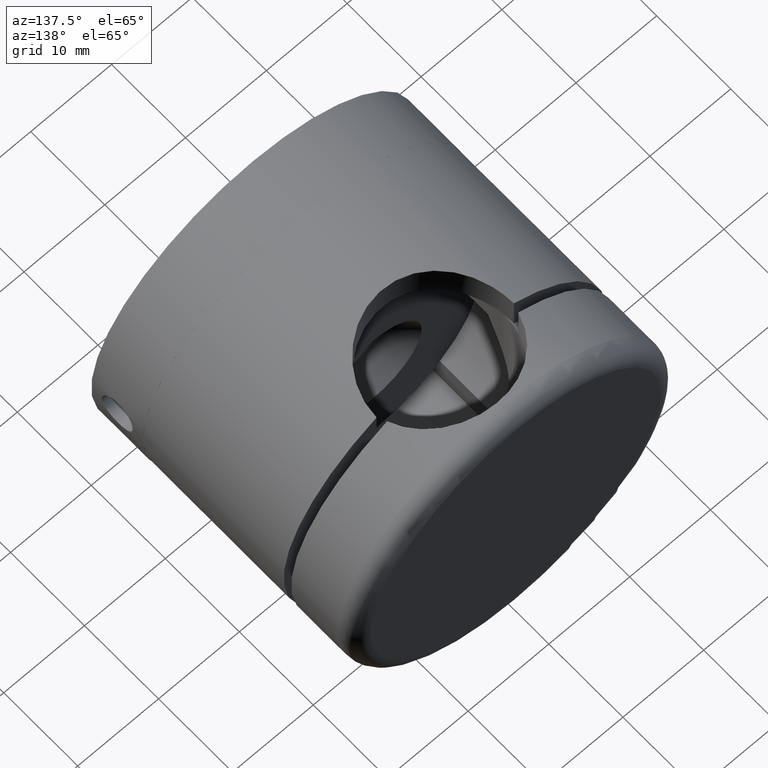
[diagram: clean part render]
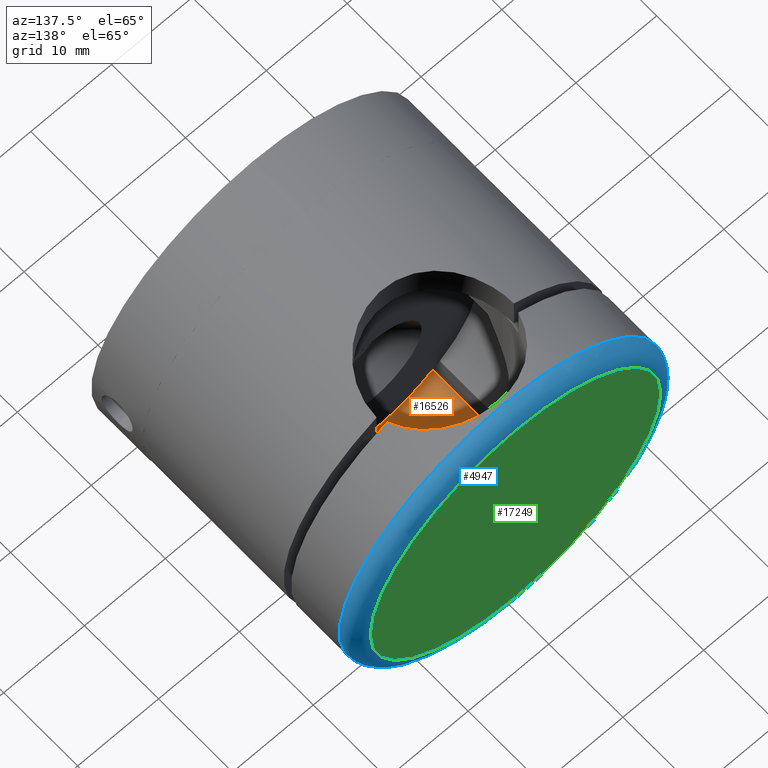
[diagram: same view with three faces highlighted in distinct colors, each labeled with its STEP entity id]
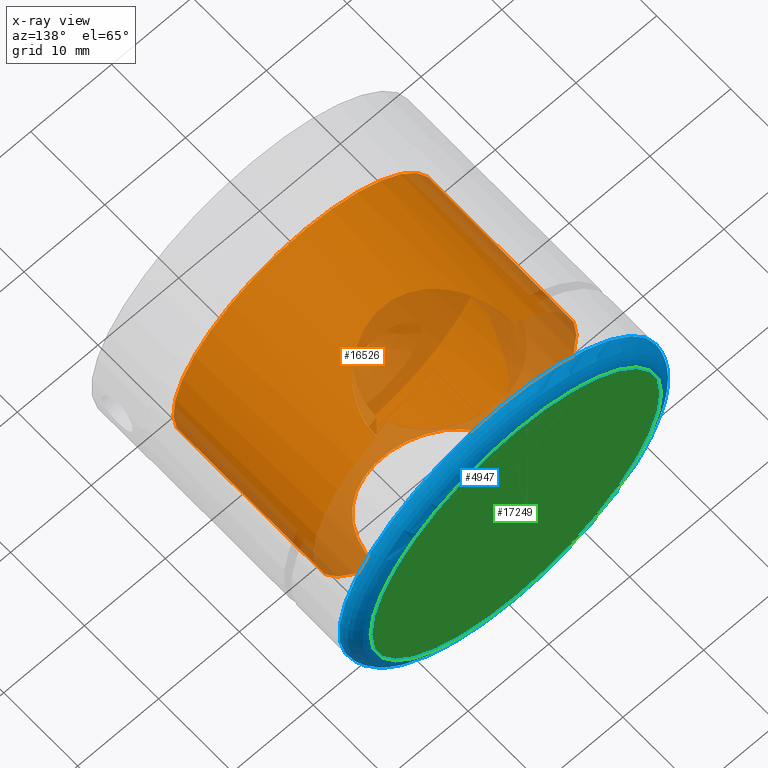
[diagram: x-ray of the same camera — body ghosted, the three highlighted faces saturated]
A machine part, auxiliary view with three faces highlighted in distinct colors.
The next image is the same camera in x-ray (body ghosted, the three faces saturated) — at least one of them is partly hidden behind the body in this view.
Their STEP definitions:

[orange] entity #16526 — the highlighted cylindrical surface (bore or boss wall) has radius 16.25 mm, axis along (0, 1, -0).
#52 = CARTESIAN_POINT ( 'NONE',  ( -7.363247620549483200, 4.282063424749966700, 14.49004335591300400 ) ) ;
#110 = CARTESIAN_POINT ( 'NONE',  ( 8.037232161873607300, 2.780470239866471300, 14.12354426583494900 ) ) ;
#119 = CARTESIAN_POINT ( 'NONE',  ( -3.028906066633567200, 7.946945183676009000, -15.96739117098686800 ) ) ;
#135 = EDGE_CURVE ( 'NONE', #8917, #15975, #12271, .T. ) ;
#176 = CARTESIAN_POINT ( 'NONE',  ( -5.195497771166607500, 6.732926401432910000, -15.39869604431503300 ) ) ;
#220 = VERTEX_POINT ( 'NONE', #11013 ) ;
#229 = CARTESIAN_POINT ( 'NONE',  ( -1.402120425055310800, 8.388269895720849700, -16.19176679194334100 ) ) ;
#272 = DIRECTION ( 'NONE',  ( 0.0000000000000000000, 1.000000000000000000, 0.0000000000000000000 ) ) ;
#481 = CYLINDRICAL_SURFACE ( 'NONE', #16524, 16.25000000000000000 ) ;
#1132 = CARTESIAN_POINT ( 'NONE',  ( 3.809983690300571300, 7.618446356659919900, -15.80563853915804100 ) ) ;
#1194 = CARTESIAN_POINT ( 'NONE',  ( 5.824376384262346400, 6.196819558004585300, -15.17174651621064600 ) ) ;
#1247 = CARTESIAN_POINT ( 'NONE',  ( 0.0000000000000000000, 19.00000000000000000, 16.25000000000000000 ) ) ;
#1249 = CARTESIAN_POINT ( 'NONE',  ( 6.208522671623909700, 5.811899787156776600, -15.01863838214485700 ) ) ;
#1293 = CARTESIAN_POINT ( 'NONE',  ( -3.044419932239369200, 7.940918235848546800, 15.96439565447294300 ) ) ;
#1300 = CARTESIAN_POINT ( 'NONE',  ( 6.902502798568850300, 4.968030373218366200, -14.71213863149005100 ) ) ;
#1351 = CARTESIAN_POINT ( 'NONE',  ( 7.361725829991794300, 4.284890509427121700, 14.49084663178017100 ) ) ;
#1392 = B_SPLINE_CURVE_WITH_KNOTS ( 'NONE', 3,
 ( #12020, #17214, #14484, #17159, #9196, #12073, #6589, #1300, #7964, #10513, #1249, #1194, #2431, #5182, #11849, #10572, #1132, #11906, #5294, #14598, #10631, #10690, #11962, #3914, #5242, #14716, #229, #14823, #5403, #13479, #119, #6877, #13651, #1580, #176, #16264, #4192, #2945, #1469, #10906, #10793, #4240, #12298, #1524, #5570, #14996, #2888, #12133 ),
 .UNSPECIFIED., .F., .F.,
 ( 4, 2, 2, 2, 2, 2, 2, 2, 2, 2, 2, 2, 2, 2, 2, 2, 2, 2, 2, 2, 2, 2, 2, 4 ),
 ( 0.0000000000000000000, 0.001691801818246960600, 0.003383603636493921200, 0.005075405454740883700, 0.005921306363864364300, 0.006767207272987845800, 0.007613108182111327300, 0.008459009091234809600, 0.01015081090948177100, 0.01099671181860524700, 0.01184261272772872700, 0.01353441454597568500, 0.01438031545509916400, 0.01522621636422264600, 0.01607211727334612400, 0.01691801818246960500, 0.01860982000071656500, 0.01945572090984003900, 0.02030162181896351700, 0.02199342363721047000, 0.02368522545545741900, 0.02453112636458090100, 0.02537702727370437500, 0.02706882909195132800 ),
 .UNSPECIFIED. ) ;
#1402 = CARTESIAN_POINT ( 'NONE',  ( -1.140538446973511600, 8.441914083903276000, 16.21940800330598300 ) ) ;
#1469 = CARTESIAN_POINT ( 'NONE',  ( -6.745047415615163200, 5.201887083998208500, -14.78796736046945200 ) ) ;
#1524 = CARTESIAN_POINT ( 'NONE',  ( -8.202525390774990700, 2.246484540882815100, -14.02819235200953000 ) ) ;
#1580 = CARTESIAN_POINT ( 'NONE',  ( -4.973135697684223400, 6.898821690035361200, -15.47215179295967700 ) ) ;
#1753 = CARTESIAN_POINT ( 'NONE',  ( 8.273194718250765700, 1.970927600636225500, 13.98646029484137500 ) ) ;
#1828 = CARTESIAN_POINT ( 'NONE',  ( -0.5811602726622778800, 8.499076714267172200, 16.24951705099035900 ) ) ;
#2115 = VERTEX_POINT ( 'NONE', #8675 ) ;
#2431 = CARTESIAN_POINT ( 'NONE',  ( 5.622895243726803800, 6.380292401261695700, -15.24781188273059000 ) ) ;
#2658 = CARTESIAN_POINT ( 'NONE',  ( 6.745047274279450300, 5.201887267279287700, 14.78796742522374100 ) ) ;
#2680 = CARTESIAN_POINT ( 'NONE',  ( 0.0000000000000000000, 19.00000000000000000, 0.0000000000000000000 ) ) ;
#2710 = CARTESIAN_POINT ( 'NONE',  ( -6.737869404444845500, 5.188985629009343900, 14.78849291981611600 ) ) ;
#2888 = CARTESIAN_POINT ( 'NONE',  ( -8.500000000000019500, 0.5735814548538439300, -13.84963898446453400 ) ) ;
#2945 = CARTESIAN_POINT ( 'NONE',  ( -6.398414073180268800, 5.621971925363692600, -14.94303349046653500 ) ) ;
#3318 = CARTESIAN_POINT ( 'NONE',  ( -8.500000000000019500, 0.0000000000000000000, 13.84963898446453000 ) ) ;
#3746 = ORIENTED_EDGE ( 'NONE', *, *, #4349, .F. ) ;
#3791 = CIRCLE ( 'NONE', #14278, 16.25000000000000000 ) ;
#3914 = CARTESIAN_POINT ( 'NONE',  ( -0.2700835903890610500, 8.500445160017417100, -16.25023285271093700 ) ) ;
#3962 = CARTESIAN_POINT ( 'NONE',  ( 1.123044246282169000, 8.430272554987556800, 16.21361837249518300 ) ) ;
#4069 = CARTESIAN_POINT ( 'NONE',  ( 7.622130831201384500, 3.802159861847044500, 14.35357052392691400 ) ) ;
#4185 = CARTESIAN_POINT ( 'NONE',  ( -8.500000000000017800, 0.5731209837496423800, 13.84963898446453500 ) ) ;
#4192 = CARTESIAN_POINT ( 'NONE',  ( -5.821409128587442100, 6.199618012665074400, -15.17288894360160600 ) ) ;
#4240 = CARTESIAN_POINT ( 'NONE',  ( -7.942311071807293600, 3.040644560720310100, -14.17734235091940100 ) ) ;
#4349 = EDGE_CURVE ( 'NONE', #2115, #220, #1392, .T. ) ;
#4773 = EDGE_CURVE ( 'NONE', #15975, #2115, #13831, .T. ) ;
#4836 = ORIENTED_EDGE ( 'NONE', *, *, #135, .F. ) ;
#5182 = CARTESIAN_POINT ( 'NONE',  ( 5.200290041349737700, 6.729195013771111200, -15.39706795526032900 ) ) ;
#5242 = CARTESIAN_POINT ( 'NONE',  ( -0.5575896931798539600, 8.486449049194593600, -16.24289822789597800 ) ) ;
#5286 = CARTESIAN_POINT ( 'NONE',  ( 2.225298934138365300, 8.208347937911199200, 16.09920561088535600 ) ) ;
#5294 = CARTESIAN_POINT ( 'NONE',  ( 2.782300072720352200, 8.036692582421428800, -16.01236239929419700 ) ) ;
#5393 = CARTESIAN_POINT ( 'NONE',  ( -5.824376552488693900, 6.196819399890648200, 15.17174645156503100 ) ) ;
#5403 = CARTESIAN_POINT ( 'NONE',  ( -2.225299164092963400, 8.208347875549172600, -16.09920557906083300 ) ) ;
#5570 = CARTESIAN_POINT ( 'NONE',  ( -8.273194772994170200, 1.970927370983964800, -13.98646026241915900 ) ) ;
#5580 = CIRCLE ( 'NONE', #7402, 16.25000000000000000 ) ;
#5622 = EDGE_CURVE ( 'NONE', #220, #8917, #5580, .T. ) ;
#6589 = CARTESIAN_POINT ( 'NONE',  ( 7.363247503396454600, 4.282063626058000900, -14.49004341572021200 ) ) ;
#6636 = CARTESIAN_POINT ( 'NONE',  ( 4.287746782987045300, 7.359925613768137300, 15.68138918018726900 ) ) ;
#6692 = CARTESIAN_POINT ( 'NONE',  ( 0.5575894543927689700, 8.486449064881840700, 16.24289823610216700 ) ) ;
#6741 = CARTESIAN_POINT ( 'NONE',  ( 7.942310987657078800, 3.040644780484841500, 14.17734239812473600 ) ) ;
#6808 = CARTESIAN_POINT ( 'NONE',  ( -4.292819007088092500, 7.356973236554203800, 15.67999772823250400 ) ) ;
#6877 = CARTESIAN_POINT ( 'NONE',  ( -3.802623793064996000, 7.622525246909893900, -15.80759195322337800 ) ) ;
#7402 = AXIS2_PLACEMENT_3D ( 'NONE', #16361, #272, #9702 ) ;
#7964 = CARTESIAN_POINT ( 'NONE',  ( 6.737869263466155400, 5.188985812067407700, -14.78849298411749100 ) ) ;
#8011 = CARTESIAN_POINT ( 'NONE',  ( -8.500000000000019500, 0.0000000000000000000, 13.84963898446453000 ) ) ;
#8129 = CARTESIAN_POINT ( 'NONE',  ( 8.500000000000012400, 2.400058654795349200E-007, 13.84963898446453500 ) ) ;
#8192 = CARTESIAN_POINT ( 'NONE',  ( -2.243177577798439100, 8.203522152921928900, 16.09674183350508500 ) ) ;
#8647 = EDGE_CURVE ( 'NONE', #12052, #12052, #3791, .T. ) ;
#8675 = CARTESIAN_POINT ( 'NONE',  ( 8.500000000000016000, 0.0000000000000000000, -13.84963898446453200 ) ) ;
#8917 = VERTEX_POINT ( 'NONE', #3318 ) ;
#8946 = CARTESIAN_POINT ( 'NONE',  ( 0.0000000000000000000, 19.00000000000000000, 0.0000000000000000000 ) ) ;
#8989 = EDGE_LOOP ( 'NONE', ( #4836, #15680, #3746, #13306 ) ) ;
#9196 = CARTESIAN_POINT ( 'NONE',  ( 8.052693322232306300, 2.776913077881560300, -14.11653347731485800 ) ) ;
#9303 = CARTESIAN_POINT ( 'NONE',  ( -2.782300295503275400, 8.036692505294755800, 16.01236236055419900 ) ) ;
#9365 = CARTESIAN_POINT ( 'NONE',  ( -8.220499268797757600, 2.233354074249762200, 14.01793960798715400 ) ) ;
#9421 = CARTESIAN_POINT ( 'NONE',  ( 3.028905845787061700, 7.946945267864135700, 15.96739121292461900 ) ) ;
#9478 = CARTESIAN_POINT ( 'NONE',  ( 0.2700833509574933600, 8.500445167631847100, 16.25023285669385200 ) ) ;
#9534 = CARTESIAN_POINT ( 'NONE',  ( 8.202525328433028000, 2.246484768489038300, 14.02819238851782300 ) ) ;
#9702 = DIRECTION ( 'NONE',  ( 0.0000000000000000000, 0.0000000000000000000, 1.000000000000000000 ) ) ;
#9975 = FACE_OUTER_BOUND ( 'NONE', #8989, .T. ) ;
#10513 = CARTESIAN_POINT ( 'NONE',  ( 6.391186662903230300, 5.610453547559827400, -14.94159094583913300 ) ) ;
#10572 = CARTESIAN_POINT ( 'NONE',  ( 4.292818805143520300, 7.356973354514498600, -15.67999778377657600 ) ) ;
#10631 = CARTESIAN_POINT ( 'NONE',  ( 1.967838988509392800, 8.273862160623387800, -16.13279240237257300 ) ) ;
#10684 = CARTESIAN_POINT ( 'NONE',  ( -4.977968416968439900, 6.895336684848163400, 15.47059667194233200 ) ) ;
#10690 = CARTESIAN_POINT ( 'NONE',  ( 1.140538209175942000, 8.441914116133961700, -16.21940802015909000 ) ) ;
#10739 = CARTESIAN_POINT ( 'NONE',  ( 5.619482256923998200, 6.383330962864746100, 15.24908050084985500 ) ) ;
#10784 = CARTESIAN_POINT ( 'NONE',  ( 1.953247837865440100, 8.277308524747018800, 16.13456155015392600 ) ) ;
#10793 = CARTESIAN_POINT ( 'NONE',  ( -7.622130935871670200, 3.802159652143755100, -14.35357046809366600 ) ) ;
#10837 = CARTESIAN_POINT ( 'NONE',  ( 5.195497587691990700, 6.732926543015164400, 15.39869610628022700 ) ) ;
#10906 = CARTESIAN_POINT ( 'NONE',  ( -7.361725946244238400, 4.284890309676384000, -14.49084657242636900 ) ) ;
#10908 = FACE_OUTER_BOUND ( 'NONE', #12929, .T. ) ;
#11013 = CARTESIAN_POINT ( 'NONE',  ( -8.499999999999976900, -7.640860524588816100E-007, -13.84963898446455700 ) ) ;
#11133 = CARTESIAN_POINT ( 'NONE',  ( 8.442547272911296500, 1.137814289251726500, 13.88535866464112100 ) ) ;
#11849 = CARTESIAN_POINT ( 'NONE',  ( 4.977968229684965000, 6.895336820087533300, -15.47059673226941500 ) ) ;
#11906 = CARTESIAN_POINT ( 'NONE',  ( 3.044419712261697600, 7.940918320194955800, -15.96439569646502400 ) ) ;
#11962 = CARTESIAN_POINT ( 'NONE',  ( 0.5811600326399415400, 8.499076730651692600, -16.24951705956069500 ) ) ;
#12013 = CARTESIAN_POINT ( 'NONE',  ( -6.902502933459320600, 4.968030185834523500, 14.71213856813573900 ) ) ;
#12020 = CARTESIAN_POINT ( 'NONE',  ( 8.500000000000016000, 0.0000000000000000000, -13.84963898446453200 ) ) ;
#12052 = VERTEX_POINT ( 'NONE', #1247 ) ;
#12063 = CARTESIAN_POINT ( 'NONE',  ( 6.398413920312656000, 5.621972099360209400, 14.94303355618917300 ) ) ;
#12073 = CARTESIAN_POINT ( 'NONE',  ( 7.623959244825647000, 3.798994790371786700, -14.35261762158086000 ) ) ;
#12124 = CARTESIAN_POINT ( 'NONE',  ( -5.200290223917082100, 6.729194872686001400, 15.39706789353994100 ) ) ;
#12133 = CARTESIAN_POINT ( 'NONE',  ( -8.499999999999976900, -7.640860524588816100E-007, -13.84963898446455700 ) ) ;
#12179 = CARTESIAN_POINT ( 'NONE',  ( 4.973135509228340500, 6.898821825910307100, 15.47215185359586100 ) ) ;
#12206 = DIRECTION ( 'NONE',  ( 0.0000000000000000000, 1.000000000000000000, 0.0000000000000000000 ) ) ;
#12271 = B_SPLINE_CURVE_WITH_KNOTS ( 'NONE', 3,
 ( #8011, #4185, #17379, #9365, #13589, #14814, #52, #12013, #2710, #16257, #17325, #5393, #14871, #12124, #10684, #6808, #16086, #1293, #9303, #8192, #16195, #1402, #1828, #9478, #6692, #3962, #13469, #10784, #5286, #14705, #9421, #14755, #6636, #12179, #10837, #10739, #16031, #12063, #2658, #1351, #4069, #6741, #110, #9534, #1753, #11133, #13883, #12464 ),
 .UNSPECIFIED., .F., .F.,
 ( 4, 2, 2, 2, 2, 2, 2, 2, 2, 2, 2, 2, 2, 2, 2, 2, 2, 2, 2, 2, 2, 2, 2, 4 ),
 ( 0.0000000000000000000, 0.001691801818361255400, 0.003383603636722510900, 0.005075405455083767400, 0.005921306364264395000, 0.006767207273445021700, 0.007613108182625649400, 0.008459009091806276100, 0.01015081091016752800, 0.01099671181934815300, 0.01184261272852878000, 0.01353441454689003100, 0.01438031545607065800, 0.01522621636525128100, 0.01607211727443190800, 0.01691801818361253500, 0.01860982000197378800, 0.01945572091115441200, 0.02030162182033503500, 0.02199342363869628500, 0.02368522545705753500, 0.02453112636623815800, 0.02537702727541878500, 0.02706882909378002800 ),
 .UNSPECIFIED. ) ;
#12298 = CARTESIAN_POINT ( 'NONE',  ( -8.037232238921488300, 2.780470017168852300, -14.12354422193410000 ) ) ;
#12464 = CARTESIAN_POINT ( 'NONE',  ( 8.500000000000012400, 2.400058654795349200E-007, 13.84963898446453500 ) ) ;
#12800 = DIRECTION ( 'NONE',  ( 0.0000000000000000000, 1.000000000000000000, 0.0000000000000000000 ) ) ;
#12834 = DIRECTION ( 'NONE',  ( 0.0000000000000000000, 0.0000000000000000000, -1.000000000000000000 ) ) ;
#12922 = DIRECTION ( 'NONE',  ( 0.0000000000000000000, 0.0000000000000000000, 1.000000000000000000 ) ) ;
#12929 = EDGE_LOOP ( 'NONE', ( #16239 ) ) ;
#13306 = ORIENTED_EDGE ( 'NONE', *, *, #4773, .F. ) ;
#13469 = CARTESIAN_POINT ( 'NONE',  ( 1.402120189043193400, 8.388269935180510100, 16.19176681240527700 ) ) ;
#13479 = CARTESIAN_POINT ( 'NONE',  ( -2.762464445342871500, 8.043489379862567300, -16.01577868337323500 ) ) ;
#13589 = CARTESIAN_POINT ( 'NONE',  ( -8.052693399292122600, 2.776912854631172800, 14.11653343310046100 ) ) ;
#13651 = CARTESIAN_POINT ( 'NONE',  ( -4.287746985521142300, 7.359925495688612400, -15.68138912456482700 ) ) ;
#13802 = CARTESIAN_POINT ( 'NONE',  ( 0.0000000000000000000, 0.0000000000000000000, 0.0000000000000000000 ) ) ;
#13831 = CIRCLE ( 'NONE', #13870, 16.25000000000000000 ) ;
#13870 = AXIS2_PLACEMENT_3D ( 'NONE', #13802, #12800, #12922 ) ;
#13883 = CARTESIAN_POINT ( 'NONE',  ( 8.499999983804373800, 0.5735816947827635500, 13.84963899440435100 ) ) ;
#14239 = DIRECTION ( 'NONE',  ( -0.0000000000000000000, -1.000000000000000000, -0.0000000000000000000 ) ) ;
#14278 = AXIS2_PLACEMENT_3D ( 'NONE', #2680, #12206, #14778 ) ;
#14484 = CARTESIAN_POINT ( 'NONE',  ( 8.442659619947717100, 1.134009342875253600, -13.88527052771008400 ) ) ;
#14598 = CARTESIAN_POINT ( 'NONE',  ( 2.243177350429215200, 8.203522215093258300, -16.09674186521953500 ) ) ;
#14705 = CARTESIAN_POINT ( 'NONE',  ( 2.762464221162083800, 8.043489456876773900, 16.01577872208027000 ) ) ;
#14716 = CARTESIAN_POINT ( 'NONE',  ( -1.123044483601358400, 8.430272523374839000, -16.21361835604807700 ) ) ;
#14755 = CARTESIAN_POINT ( 'NONE',  ( 3.802623582357953900, 7.622525352085043300, 15.80759200409083800 ) ) ;
#14778 = DIRECTION ( 'NONE',  ( 0.0000000000000000000, 0.0000000000000000000, 1.000000000000000000 ) ) ;
#14814 = CARTESIAN_POINT ( 'NONE',  ( -7.623959349269640900, 3.798994580925700000, 14.35261756584944900 ) ) ;
#14823 = CARTESIAN_POINT ( 'NONE',  ( -1.953248070195373200, 8.277308469912913600, -16.13456152200346600 ) ) ;
#14871 = CARTESIAN_POINT ( 'NONE',  ( -5.622895416904475100, 6.380292248643931100, 15.24781181880865200 ) ) ;
#14996 = CARTESIAN_POINT ( 'NONE',  ( -8.442547305012478600, 1.137814052028089100, -13.88535864495906900 ) ) ;
#15680 = ORIENTED_EDGE ( 'NONE', *, *, #5622, .F. ) ;
#15975 = VERTEX_POINT ( 'NONE', #8129 ) ;
#16031 = CARTESIAN_POINT ( 'NONE',  ( 5.821408959818793200, 6.199618171141711500, 15.17288900841903200 ) ) ;
#16086 = CARTESIAN_POINT ( 'NONE',  ( -3.809983900521940000, 7.618446251484360100, 15.80563848831322300 ) ) ;
#16195 = CARTESIAN_POINT ( 'NONE',  ( -1.967839219327221600, 8.273862105699803800, 16.13279237418496200 ) ) ;
#16239 = ORIENTED_EDGE ( 'NONE', *, *, #8647, .T. ) ;
#16257 = CARTESIAN_POINT ( 'NONE',  ( -6.391186815282856600, 5.610453373977368800, 14.94159088059100100 ) ) ;
#16264 = CARTESIAN_POINT ( 'NONE',  ( -5.619482430757248200, 6.383330809829624600, -15.24908043672835100 ) ) ;
#16361 = CARTESIAN_POINT ( 'NONE',  ( 0.0000000000000000000, 0.0000000000000000000, 0.0000000000000000000 ) ) ;
#16524 = AXIS2_PLACEMENT_3D ( 'NONE', #8946, #14239, #12834 ) ;
#16526 = ADVANCED_FACE ( 'NONE', ( #9975, #10908 ), #481, .F. ) ;
#17159 = CARTESIAN_POINT ( 'NONE',  ( 8.220499206402118700, 2.233354303635269200, -14.01793964473852600 ) ) ;
#17214 = CARTESIAN_POINT ( 'NONE',  ( 8.499999983817378500, 0.5731212237919606200, -13.84963899439637700 ) ) ;
#17325 = CARTESIAN_POINT ( 'NONE',  ( -6.208522829451255600, 5.811899618560506300, 15.01863831683614200 ) ) ;
#17379 = CARTESIAN_POINT ( 'NONE',  ( -8.442659651962181000, 1.134009105079109500, 13.88527050808190900 ) ) ;

[blue] entity #4947 — the highlighted toroidal blend (fillet) surface has major radius 18 mm and minor (blend) radius 2 mm.
#139 = FACE_OUTER_BOUND ( 'NONE', #6889, .T. ) ;
#1022 = DIRECTION ( 'NONE',  ( 0.0000000000000000000, 0.0000000000000000000, -1.000000000000000000 ) ) ;
#2684 = ORIENTED_EDGE ( 'NONE', *, *, #8947, .F. ) ;
#3696 = AXIS2_PLACEMENT_3D ( 'NONE', #12318, #16338, #12379 ) ;
#4024 = CARTESIAN_POINT ( 'NONE',  ( 0.0000000000000000000, 1.500000000000000000, -18.00000000000000400 ) ) ;
#4947 = ADVANCED_FACE ( 'NONE', ( #139, #10273 ), #6651, .T. ) ;
#6239 = ORIENTED_EDGE ( 'NONE', *, *, #7831, .F. ) ;
#6349 = DIRECTION ( 'NONE',  ( 0.0000000000000000000, -1.000000000000000000, 0.0000000000000000000 ) ) ;
#6393 = CIRCLE ( 'NONE', #3696, 18.00000000000000400 ) ;
#6651 = TOROIDAL_SURFACE ( 'NONE', #7163, 18.00000000000000400, 2.000000000000000000 ) ;
#6889 = EDGE_LOOP ( 'NONE', ( #2684 ) ) ;
#7163 = AXIS2_PLACEMENT_3D ( 'NONE', #13037, #6349, #1022 ) ;
#7259 = DIRECTION ( 'NONE',  ( 0.0000000000000000000, 0.0000000000000000000, -1.000000000000000000 ) ) ;
#7831 = EDGE_CURVE ( 'NONE', #12910, #12910, #6393, .T. ) ;
#8195 = CIRCLE ( 'NONE', #12037, 20.00000000000000000 ) ;
#8947 = EDGE_CURVE ( 'NONE', #17283, #17283, #8195, .T. ) ;
#10273 = FACE_OUTER_BOUND ( 'NONE', #15434, .T. ) ;
#12037 = AXIS2_PLACEMENT_3D ( 'NONE', #15315, #15257, #7259 ) ;
#12318 = CARTESIAN_POINT ( 'NONE',  ( 0.0000000000000000000, 1.500000000000000000, 0.0000000000000000000 ) ) ;
#12379 = DIRECTION ( 'NONE',  ( 0.0000000000000000000, 0.0000000000000000000, -1.000000000000000000 ) ) ;
#12910 = VERTEX_POINT ( 'NONE', #4024 ) ;
#13037 = CARTESIAN_POINT ( 'NONE',  ( 0.0000000000000000000, 3.499999999999999600, 0.0000000000000000000 ) ) ;
#15257 = DIRECTION ( 'NONE',  ( -0.0000000000000000000, 1.000000000000000000, -0.0000000000000000000 ) ) ;
#15315 = CARTESIAN_POINT ( 'NONE',  ( 0.0000000000000000000, 3.499999999999999600, 0.0000000000000000000 ) ) ;
#15434 = EDGE_LOOP ( 'NONE', ( #6239 ) ) ;
#15935 = CARTESIAN_POINT ( 'NONE',  ( 0.0000000000000000000, 3.499999999999999600, -20.00000000000000000 ) ) ;
#16338 = DIRECTION ( 'NONE',  ( 0.0000000000000000000, -1.000000000000000000, 0.0000000000000000000 ) ) ;
#17283 = VERTEX_POINT ( 'NONE', #15935 ) ;

[green] entity #17249 — the highlighted planar face has unit normal (0, 1, 0).
#2363 = PLANE ( 'NONE',  #7595 ) ;
#3651 = ORIENTED_EDGE ( 'NONE', *, *, #7831, .T. ) ;
#3696 = AXIS2_PLACEMENT_3D ( 'NONE', #12318, #16338, #12379 ) ;
#4024 = CARTESIAN_POINT ( 'NONE',  ( 0.0000000000000000000, 1.500000000000000000, -18.00000000000000400 ) ) ;
#6287 = CARTESIAN_POINT ( 'NONE',  ( 0.0000000000000000000, 1.500000000000000000, 0.0000000000000000000 ) ) ;
#6393 = CIRCLE ( 'NONE', #3696, 18.00000000000000400 ) ;
#7595 = AXIS2_PLACEMENT_3D ( 'NONE', #6287, #16930, #10224 ) ;
#7831 = EDGE_CURVE ( 'NONE', #12910, #12910, #6393, .T. ) ;
#10224 = DIRECTION ( 'NONE',  ( 0.0000000000000000000, -0.0000000000000000000, -1.000000000000000000 ) ) ;
#11474 = EDGE_LOOP ( 'NONE', ( #3651 ) ) ;
#12318 = CARTESIAN_POINT ( 'NONE',  ( 0.0000000000000000000, 1.500000000000000000, 0.0000000000000000000 ) ) ;
#12379 = DIRECTION ( 'NONE',  ( 0.0000000000000000000, 0.0000000000000000000, -1.000000000000000000 ) ) ;
#12910 = VERTEX_POINT ( 'NONE', #4024 ) ;
#14183 = FACE_OUTER_BOUND ( 'NONE', #11474, .T. ) ;
#16338 = DIRECTION ( 'NONE',  ( 0.0000000000000000000, -1.000000000000000000, 0.0000000000000000000 ) ) ;
#16930 = DIRECTION ( 'NONE',  ( 0.0000000000000000000, -1.000000000000000000, 0.0000000000000000000 ) ) ;
#17249 = ADVANCED_FACE ( 'NONE', ( #14183 ), #2363, .T. ) ;